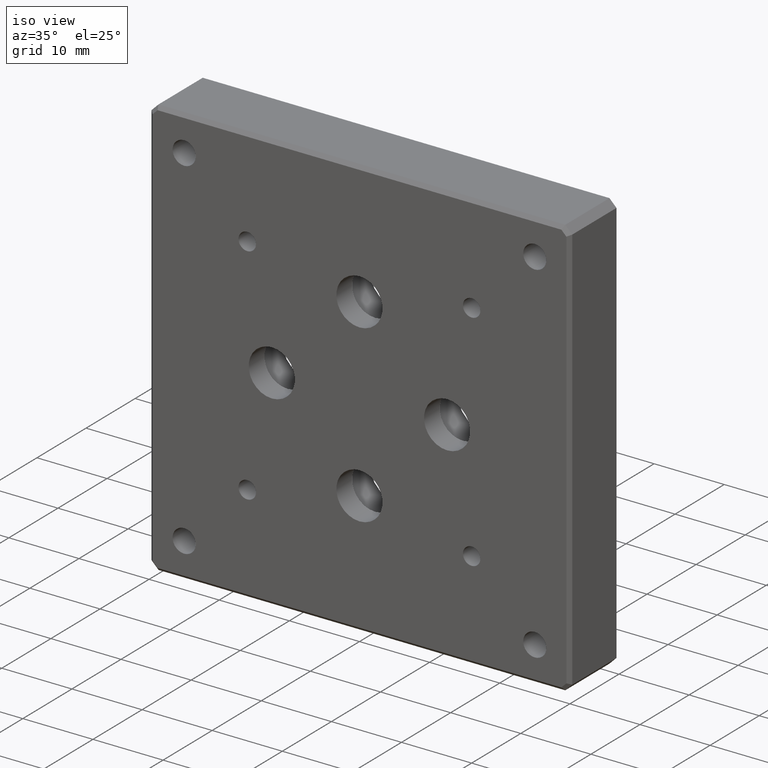
[diagram: clean part render]
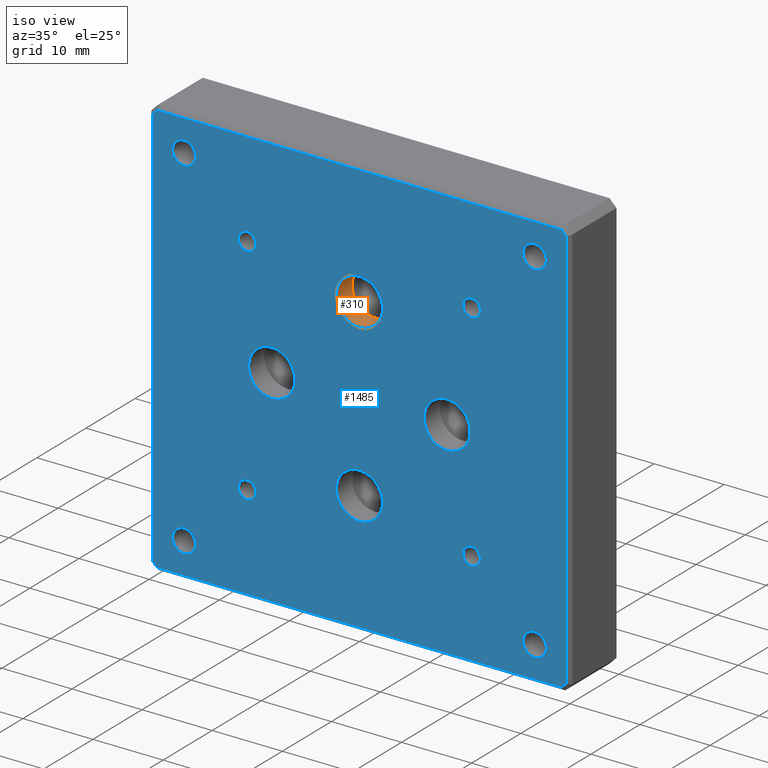
[diagram: same view with the hole feature highlighted: cylindrical wall and planar end face, labeled with their STEP entity ids]
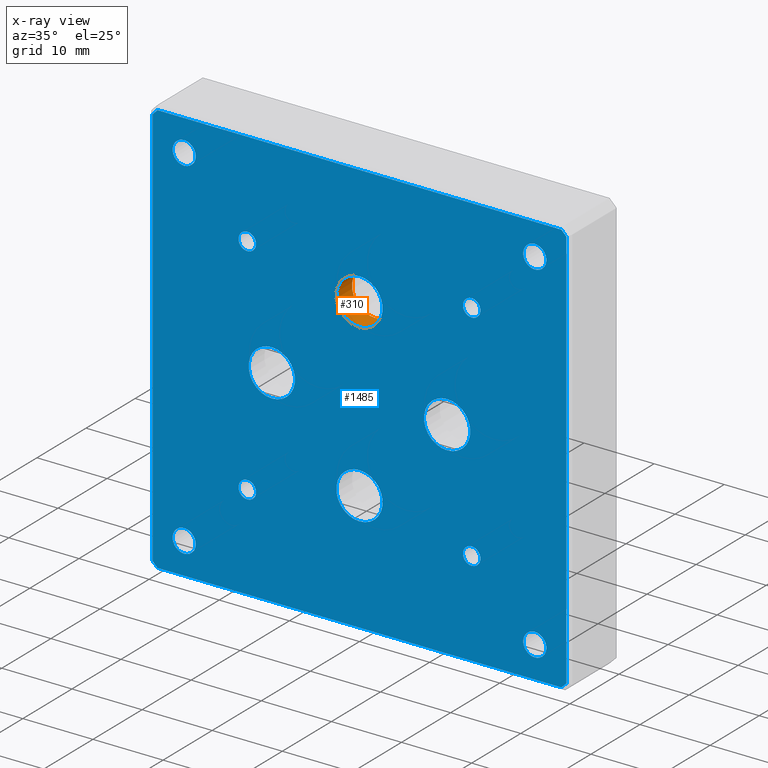
[diagram: x-ray of the same camera — body ghosted, the hole faces saturated]
A machine part, iso view. The highlighted faces form one hole feature of diameter 6.6 mm: the cylindrical wall (entity #310, orange) and its adjacent planar end face (entity #1485, blue) — they share a circular edge in the B-rep.
The next image is the same camera in x-ray (body ghosted, the hole faces saturated) — the bore reads through the body.
Wall:
#82 = EDGE_CURVE ( 'NONE', #689, #689, #297, .T. ) ;
#159 = DIRECTION ( 'NONE',  ( -0.000000000000000000, 1.000000000000000000, -0.000000000000000000 ) ) ;
#183 = DIRECTION ( 'NONE',  ( 0.000000000000000000, 0.000000000000000000, 1.000000000000000000 ) ) ;
#202 = EDGE_LOOP ( 'NONE', ( #696 ) ) ;
#215 = CARTESIAN_POINT ( 'NONE',  ( 6.938893903907228378E-15, 3.200000000000003286, 15.80000000000000071 ) ) ;
#294 = CARTESIAN_POINT ( 'NONE',  ( 6.938893903907228378E-15, 0.000000000000000000, 12.50000000000000355 ) ) ;
#297 = CIRCLE ( 'NONE', #1285, 3.299999999999997158 ) ;
#300 = DIRECTION ( 'NONE',  ( -0.000000000000000000, 1.000000000000000000, -0.000000000000000000 ) ) ;
#310 = ADVANCED_FACE ( 'NONE', ( #1202, #840 ), #1328, .F. ) ;
#312 = AXIS2_PLACEMENT_3D ( 'NONE', #294, #159, #665 ) ;
#528 = CARTESIAN_POINT ( 'NONE',  ( 6.938893903907228378E-15, 3.200000000000003286, 12.50000000000000355 ) ) ;
#581 = AXIS2_PLACEMENT_3D ( 'NONE', #1194, #1539, #1065 ) ;
#665 = DIRECTION ( 'NONE',  ( 0.000000000000000000, 0.000000000000000000, 1.000000000000000000 ) ) ;
#689 = VERTEX_POINT ( 'NONE', #215 ) ;
#696 = ORIENTED_EDGE ( 'NONE', *, *, #951, .F. ) ;
#840 = FACE_OUTER_BOUND ( 'NONE', #1396, .T. ) ;
#951 = EDGE_CURVE ( 'NONE', #1426, #1426, #1003, .T. ) ;
#1003 = CIRCLE ( 'NONE', #312, 3.299999999999997158 ) ;
#1065 = DIRECTION ( 'NONE',  ( 0.000000000000000000, 0.000000000000000000, 1.000000000000000000 ) ) ;
#1194 = CARTESIAN_POINT ( 'NONE',  ( 6.938893903907228378E-15, 10.00000000000000000, 12.50000000000000355 ) ) ;
#1202 = FACE_OUTER_BOUND ( 'NONE', #202, .T. ) ;
#1285 = AXIS2_PLACEMENT_3D ( 'NONE', #528, #300, #183 ) ;
#1315 = ORIENTED_EDGE ( 'NONE', *, *, #82, .T. ) ;
#1328 = CYLINDRICAL_SURFACE ( 'NONE', #581, 3.299999999999997158 ) ;
#1396 = EDGE_LOOP ( 'NONE', ( #1315 ) ) ;
#1426 = VERTEX_POINT ( 'NONE', #1442 ) ;
#1442 = CARTESIAN_POINT ( 'NONE',  ( 6.938893903907228378E-15, 0.000000000000000000, 15.80000000000000071 ) ) ;
#1539 = DIRECTION ( 'NONE',  ( -0.000000000000000000, 1.000000000000000000, -0.000000000000000000 ) ) ;
End face:
#14 = DIRECTION ( 'NONE',  ( 0.000000000000000000, 0.000000000000000000, 1.000000000000000000 ) ) ;
#27 = CARTESIAN_POINT ( 'NONE',  ( 29.64644660940670917, 0.000000000000000000, -28.64644660940672338 ) ) ;
#32 = PLANE ( 'NONE',  #760 ) ;
#34 = DIRECTION ( 'NONE',  ( 0.000000000000000000, 0.000000000000000000, 1.000000000000000000 ) ) ;
#35 = VERTEX_POINT ( 'NONE', #537 ) ;
#38 = CIRCLE ( 'NONE', #920, 1.249999999999997558 ) ;
#44 = AXIS2_PLACEMENT_3D ( 'NONE', #958, #247, #14 ) ;
#54 = DIRECTION ( 'NONE',  ( 0.000000000000000000, 0.000000000000000000, 1.000000000000000000 ) ) ;
#56 = CARTESIAN_POINT ( 'NONE',  ( 3.469446951953614189E-15, 0.000000000000000000, -9.199999999999999289 ) ) ;
#93 = CARTESIAN_POINT ( 'NONE',  ( 29.49999999999998934, 0.000000000000000000, -28.79289321881344321 ) ) ;
#98 = VERTEX_POINT ( 'NONE', #677 ) ;
#131 = LINE ( 'NONE', #826, #876 ) ;
#144 = ORIENTED_EDGE ( 'NONE', *, *, #951, .T. ) ;
#149 = DIRECTION ( 'NONE',  ( 0.7071067811865474617, 0.000000000000000000, 0.7071067811865474617 ) ) ;
#156 = ORIENTED_EDGE ( 'NONE', *, *, #366, .T. ) ;
#159 = DIRECTION ( 'NONE',  ( -0.000000000000000000, 1.000000000000000000, -0.000000000000000000 ) ) ;
#160 = EDGE_LOOP ( 'NONE', ( #1090 ) ) ;
#163 = FACE_BOUND ( 'NONE', #160, .T. ) ;
#170 = EDGE_CURVE ( 'NONE', #1080, #1359, #315, .T. ) ;
#211 = VERTEX_POINT ( 'NONE', #690 ) ;
#212 = DIRECTION ( 'NONE',  ( -0.000000000000000000, 1.000000000000000000, -0.000000000000000000 ) ) ;
#220 = CARTESIAN_POINT ( 'NONE',  ( -29.50000000000000711, 0.000000000000000000, 3.411622836087721539E-15 ) ) ;
#221 = AXIS2_PLACEMENT_3D ( 'NONE', #1039, #311, #817 ) ;
#222 = EDGE_LOOP ( 'NONE', ( #144 ) ) ;
#233 = VERTEX_POINT ( 'NONE', #1086 ) ;
#244 = LINE ( 'NONE', #1223, #1553 ) ;
#246 = CARTESIAN_POINT ( 'NONE',  ( 25.00000000000000355, 0.000000000000000000, 26.65000000000000568 ) ) ;
#247 = DIRECTION ( 'NONE',  ( -0.000000000000000000, 1.000000000000000000, -0.000000000000000000 ) ) ;
#264 = AXIS2_PLACEMENT_3D ( 'NONE', #771, #1369, #34 ) ;
#270 = CIRCLE ( 'NONE', #44, 1.649999999999998579 ) ;
#271 = FACE_BOUND ( 'NONE', #809, .T. ) ;
#273 = CARTESIAN_POINT ( 'NONE',  ( -16.00000000000000355, 0.000000000000000000, 15.99999999999999645 ) ) ;
#281 = DIRECTION ( 'NONE',  ( -0.000000000000000000, 1.000000000000000000, -0.000000000000000000 ) ) ;
#285 = FACE_OUTER_BOUND ( 'NONE', #999, .T. ) ;
#289 = DIRECTION ( 'NONE',  ( -0.000000000000000000, 1.000000000000000000, -0.000000000000000000 ) ) ;
#291 = AXIS2_PLACEMENT_3D ( 'NONE', #1380, #289, #54 ) ;
#294 = CARTESIAN_POINT ( 'NONE',  ( 6.938893903907228378E-15, 0.000000000000000000, 12.50000000000000355 ) ) ;
#301 = CARTESIAN_POINT ( 'NONE',  ( -16.00000000000000355, 0.000000000000000000, -16.00000000000000355 ) ) ;
#311 = DIRECTION ( 'NONE',  ( -0.000000000000000000, 1.000000000000000000, -0.000000000000000000 ) ) ;
#312 = AXIS2_PLACEMENT_3D ( 'NONE', #294, #159, #665 ) ;
#315 = LINE ( 'NONE', #1551, #1212 ) ;
#320 = ORIENTED_EDGE ( 'NONE', *, *, #893, .T. ) ;
#329 = EDGE_LOOP ( 'NONE', ( #735 ) ) ;
#330 = LINE ( 'NONE', #800, #793 ) ;
#345 = CARTESIAN_POINT ( 'NONE',  ( -24.99999999999999645, 0.000000000000000000, 26.65000000000000568 ) ) ;
#355 = DIRECTION ( 'NONE',  ( -1.000000000000000000, 0.000000000000000000, 0.000000000000000000 ) ) ;
#358 = ORIENTED_EDGE ( 'NONE', *, *, #984, .T. ) ;
#362 = VERTEX_POINT ( 'NONE', #379 ) ;
#363 = CARTESIAN_POINT ( 'NONE',  ( -29.64644660940671628, 0.000000000000000000, 28.64644660940673759 ) ) ;
#364 = VERTEX_POINT ( 'NONE', #93 ) ;
#366 = EDGE_CURVE ( 'NONE', #35, #98, #1425, .T. ) ;
#378 = CIRCLE ( 'NONE', #291, 1.649999999999998579 ) ;
#379 = CARTESIAN_POINT ( 'NONE',  ( -12.49999999999999467, 0.000000000000000000, 3.300000000000000711 ) ) ;
#388 = CARTESIAN_POINT ( 'NONE',  ( 0.000000000000000000, 0.000000000000000000, 0.000000000000000000 ) ) ;
#399 = CIRCLE ( 'NONE', #1384, 3.299999999999997158 ) ;
#407 = DIRECTION ( 'NONE',  ( 0.000000000000000000, 0.000000000000000000, 1.000000000000000000 ) ) ;
#429 = DIRECTION ( 'NONE',  ( -0.000000000000000000, 1.000000000000000000, -0.000000000000000000 ) ) ;
#453 = ORIENTED_EDGE ( 'NONE', *, *, #622, .T. ) ;
#469 = CARTESIAN_POINT ( 'NONE',  ( -25.00000000000000355, 0.000000000000000000, -23.34999999999999432 ) ) ;
#472 = ORIENTED_EDGE ( 'NONE', *, *, #572, .T. ) ;
#499 = CARTESIAN_POINT ( 'NONE',  ( 28.79289321881342900, 0.000000000000000000, -29.50000000000000355 ) ) ;
#505 = FACE_BOUND ( 'NONE', #1211, .T. ) ;
#509 = CARTESIAN_POINT ( 'NONE',  ( -29.50000000000000355, 0.000000000000000000, 28.79289321881345032 ) ) ;
#536 = EDGE_CURVE ( 'NONE', #670, #670, #399, .T. ) ;
#537 = CARTESIAN_POINT ( 'NONE',  ( 28.79289321881344321, 0.000000000000000000, 29.50000000000000711 ) ) ;
#539 = ORIENTED_EDGE ( 'NONE', *, *, #1349, .T. ) ;
#541 = VERTEX_POINT ( 'NONE', #1399 ) ;
#550 = EDGE_CURVE ( 'NONE', #541, #541, #378, .T. ) ;
#559 = LINE ( 'NONE', #220, #825 ) ;
#566 = DIRECTION ( 'NONE',  ( -1.156482317317871478E-16, 0.000000000000000000, -1.000000000000000000 ) ) ;
#570 = CARTESIAN_POINT ( 'NONE',  ( -28.79289321881344321, 0.000000000000000000, -29.50000000000000355 ) ) ;
#572 = EDGE_CURVE ( 'NONE', #211, #35, #330, .T. ) ;
#578 = CARTESIAN_POINT ( 'NONE',  ( -16.00000000000000355, 0.000000000000000000, 17.24999999999999289 ) ) ;
#585 = EDGE_LOOP ( 'NONE', ( #453 ) ) ;
#603 = AXIS2_PLACEMENT_3D ( 'NONE', #301, #1402, #1286 ) ;
#615 = EDGE_CURVE ( 'NONE', #909, #909, #1032, .T. ) ;
#622 = EDGE_CURVE ( 'NONE', #362, #362, #1309, .T. ) ;
#633 = EDGE_LOOP ( 'NONE', ( #703 ) ) ;
#639 = DIRECTION ( 'NONE',  ( 0.000000000000000000, 0.000000000000000000, 1.000000000000000000 ) ) ;
#645 = FACE_BOUND ( 'NONE', #1431, .T. ) ;
#648 = VECTOR ( 'NONE', #149, 1000.000000000000114 ) ;
#665 = DIRECTION ( 'NONE',  ( 0.000000000000000000, 0.000000000000000000, 1.000000000000000000 ) ) ;
#669 = EDGE_CURVE ( 'NONE', #837, #680, #559, .T. ) ;
#670 = VERTEX_POINT ( 'NONE', #56 ) ;
#677 = CARTESIAN_POINT ( 'NONE',  ( -28.79289321881344321, 0.000000000000000000, 29.50000000000000711 ) ) ;
#680 = VERTEX_POINT ( 'NONE', #704 ) ;
#690 = CARTESIAN_POINT ( 'NONE',  ( 29.49999999999999645, 0.000000000000000000, 28.79289321881346453 ) ) ;
#701 = DIRECTION ( 'NONE',  ( 1.000000000000000000, 0.000000000000000000, 0.000000000000000000 ) ) ;
#703 = ORIENTED_EDGE ( 'NONE', *, *, #1201, .T. ) ;
#704 = CARTESIAN_POINT ( 'NONE',  ( -29.50000000000000711, 0.000000000000000000, -28.79289321881343611 ) ) ;
#707 = CARTESIAN_POINT ( 'NONE',  ( 15.99999999999999645, 0.000000000000000000, -14.75000000000000355 ) ) ;
#735 = ORIENTED_EDGE ( 'NONE', *, *, #550, .T. ) ;
#736 = DIRECTION ( 'NONE',  ( 0.7071067811865474617, 0.000000000000000000, -0.7071067811865474617 ) ) ;
#751 = FACE_BOUND ( 'NONE', #1429, .T. ) ;
#760 = AXIS2_PLACEMENT_3D ( 'NONE', #388, #1004, #1227 ) ;
#769 = FACE_BOUND ( 'NONE', #633, .T. ) ;
#771 = CARTESIAN_POINT ( 'NONE',  ( -25.00000000000000355, 0.000000000000000000, -24.99999999999999289 ) ) ;
#777 = DIRECTION ( 'NONE',  ( 0.000000000000000000, 0.000000000000000000, 1.000000000000000000 ) ) ;
#782 = EDGE_CURVE ( 'NONE', #680, #1080, #244, .T. ) ;
#793 = VECTOR ( 'NONE', #1280, 1000.000000000000114 ) ;
#800 = CARTESIAN_POINT ( 'NONE',  ( 28.64644660940672338, 0.000000000000000000, 29.64644660940673049 ) ) ;
#809 = EDGE_LOOP ( 'NONE', ( #1353 ) ) ;
#817 = DIRECTION ( 'NONE',  ( 0.000000000000000000, 0.000000000000000000, 1.000000000000000000 ) ) ;
#819 = CIRCLE ( 'NONE', #264, 1.649999999999998579 ) ;
#825 = VECTOR ( 'NONE', #566, 1000.000000000000000 ) ;
#826 = CARTESIAN_POINT ( 'NONE',  ( 29.49999999999999289, 0.000000000000000000, -3.411622836087719962E-15 ) ) ;
#837 = VERTEX_POINT ( 'NONE', #509 ) ;
#850 = DIRECTION ( 'NONE',  ( 0.000000000000000000, 0.000000000000000000, 1.000000000000000000 ) ) ;
#860 = ORIENTED_EDGE ( 'NONE', *, *, #917, .T. ) ;
#861 = FACE_BOUND ( 'NONE', #913, .T. ) ;
#876 = VECTOR ( 'NONE', #1450, 1000.000000000000000 ) ;
#891 = ORIENTED_EDGE ( 'NONE', *, *, #1301, .T. ) ;
#893 = EDGE_CURVE ( 'NONE', #1337, #1337, #819, .T. ) ;
#902 = EDGE_CURVE ( 'NONE', #1359, #364, #1498, .T. ) ;
#909 = VERTEX_POINT ( 'NONE', #1393 ) ;
#910 = VECTOR ( 'NONE', #1196, 1000.000000000000114 ) ;
#913 = EDGE_LOOP ( 'NONE', ( #1016 ) ) ;
#917 = EDGE_CURVE ( 'NONE', #1344, #1344, #1303, .T. ) ;
#920 = AXIS2_PLACEMENT_3D ( 'NONE', #273, #429, #639 ) ;
#951 = EDGE_CURVE ( 'NONE', #1426, #1426, #1003, .T. ) ;
#958 = CARTESIAN_POINT ( 'NONE',  ( 25.00000000000000355, 0.000000000000000000, 25.00000000000000711 ) ) ;
#965 = VECTOR ( 'NONE', #355, 1000.000000000000000 ) ;
#966 = CARTESIAN_POINT ( 'NONE',  ( 12.50000000000000533, 0.000000000000000000, 3.299999999999997158 ) ) ;
#981 = EDGE_CURVE ( 'NONE', #1076, #1076, #1249, .T. ) ;
#984 = EDGE_CURVE ( 'NONE', #1455, #1455, #38, .T. ) ;
#998 = DIRECTION ( 'NONE',  ( 0.000000000000000000, 0.000000000000000000, 1.000000000000000000 ) ) ;
#999 = EDGE_LOOP ( 'NONE', ( #1287, #891, #472, #156, #539, #1110, #1355, #1183 ) ) ;
#1003 = CIRCLE ( 'NONE', #312, 3.299999999999997158 ) ;
#1004 = DIRECTION ( 'NONE',  ( 0.000000000000000000, 1.000000000000000000, 0.000000000000000000 ) ) ;
#1012 = FACE_BOUND ( 'NONE', #585, .T. ) ;
#1016 = ORIENTED_EDGE ( 'NONE', *, *, #981, .T. ) ;
#1021 = CARTESIAN_POINT ( 'NONE',  ( 12.50000000000000533, 0.000000000000000000, 1.734723475976807094E-15 ) ) ;
#1027 = AXIS2_PLACEMENT_3D ( 'NONE', #1504, #281, #998 ) ;
#1032 = CIRCLE ( 'NONE', #1360, 1.249999999999997558 ) ;
#1039 = CARTESIAN_POINT ( 'NONE',  ( -12.49999999999999467, 0.000000000000000000, 3.469446951953614189E-15 ) ) ;
#1052 = ORIENTED_EDGE ( 'NONE', *, *, #615, .T. ) ;
#1076 = VERTEX_POINT ( 'NONE', #707 ) ;
#1078 = DIRECTION ( 'NONE',  ( -0.000000000000000000, 1.000000000000000000, -0.000000000000000000 ) ) ;
#1080 = VERTEX_POINT ( 'NONE', #570 ) ;
#1086 = CARTESIAN_POINT ( 'NONE',  ( -16.00000000000000355, 0.000000000000000000, -14.75000000000000533 ) ) ;
#1087 = CARTESIAN_POINT ( 'NONE',  ( -24.99999999999999645, 0.000000000000000000, 25.00000000000000711 ) ) ;
#1088 = ORIENTED_EDGE ( 'NONE', *, *, #1226, .T. ) ;
#1090 = ORIENTED_EDGE ( 'NONE', *, *, #1274, .T. ) ;
#1110 = ORIENTED_EDGE ( 'NONE', *, *, #669, .T. ) ;
#1123 = EDGE_LOOP ( 'NONE', ( #320 ) ) ;
#1165 = EDGE_LOOP ( 'NONE', ( #1052 ) ) ;
#1181 = DIRECTION ( 'NONE',  ( 0.000000000000000000, 0.000000000000000000, 1.000000000000000000 ) ) ;
#1183 = ORIENTED_EDGE ( 'NONE', *, *, #170, .T. ) ;
#1196 = DIRECTION ( 'NONE',  ( -0.7071067811865474617, 0.000000000000000000, -0.7071067811865474617 ) ) ;
#1201 = EDGE_CURVE ( 'NONE', #233, #233, #1458, .T. ) ;
#1208 = CIRCLE ( 'NONE', #1561, 1.649999999999998579 ) ;
#1211 = EDGE_LOOP ( 'NONE', ( #1088 ) ) ;
#1212 = VECTOR ( 'NONE', #701, 1000.000000000000000 ) ;
#1214 = VERTEX_POINT ( 'NONE', #345 ) ;
#1223 = CARTESIAN_POINT ( 'NONE',  ( -28.64644660940673049, 0.000000000000000000, -29.64644660940671628 ) ) ;
#1226 = EDGE_CURVE ( 'NONE', #1214, #1214, #1208, .T. ) ;
#1227 = DIRECTION ( 'NONE',  ( 0.000000000000000000, -0.000000000000000000, 1.000000000000000000 ) ) ;
#1233 = CARTESIAN_POINT ( 'NONE',  ( 0.000000000000000000, 0.000000000000000000, 29.50000000000000711 ) ) ;
#1249 = CIRCLE ( 'NONE', #1027, 1.249999999999997558 ) ;
#1251 = FACE_BOUND ( 'NONE', #1123, .T. ) ;
#1273 = CARTESIAN_POINT ( 'NONE',  ( 3.469446951953614189E-15, 0.000000000000000000, -12.49999999999999645 ) ) ;
#1274 = EDGE_CURVE ( 'NONE', #1560, #1560, #270, .T. ) ;
#1280 = DIRECTION ( 'NONE',  ( -0.7071067811865500152, 0.000000000000000000, 0.7071067811865451302 ) ) ;
#1286 = DIRECTION ( 'NONE',  ( 0.000000000000000000, 0.000000000000000000, 1.000000000000000000 ) ) ;
#1287 = ORIENTED_EDGE ( 'NONE', *, *, #902, .T. ) ;
#1295 = CARTESIAN_POINT ( 'NONE',  ( 16.00000000000000355, 0.000000000000000000, 15.99999999999999645 ) ) ;
#1301 = EDGE_CURVE ( 'NONE', #364, #211, #131, .T. ) ;
#1303 = CIRCLE ( 'NONE', #1522, 3.299999999999995826 ) ;
#1309 = CIRCLE ( 'NONE', #221, 3.299999999999997158 ) ;
#1337 = VERTEX_POINT ( 'NONE', #469 ) ;
#1344 = VERTEX_POINT ( 'NONE', #966 ) ;
#1345 = LINE ( 'NONE', #363, #910 ) ;
#1349 = EDGE_CURVE ( 'NONE', #98, #837, #1345, .T. ) ;
#1353 = ORIENTED_EDGE ( 'NONE', *, *, #536, .T. ) ;
#1355 = ORIENTED_EDGE ( 'NONE', *, *, #782, .T. ) ;
#1359 = VERTEX_POINT ( 'NONE', #499 ) ;
#1360 = AXIS2_PLACEMENT_3D ( 'NONE', #1295, #212, #1181 ) ;
#1367 = FACE_BOUND ( 'NONE', #329, .T. ) ;
#1369 = DIRECTION ( 'NONE',  ( -0.000000000000000000, 1.000000000000000000, -0.000000000000000000 ) ) ;
#1380 = CARTESIAN_POINT ( 'NONE',  ( 24.99999999999999645, 0.000000000000000000, -24.99999999999998934 ) ) ;
#1383 = DIRECTION ( 'NONE',  ( -0.000000000000000000, 1.000000000000000000, -0.000000000000000000 ) ) ;
#1384 = AXIS2_PLACEMENT_3D ( 'NONE', #1273, #1482, #407 ) ;
#1393 = CARTESIAN_POINT ( 'NONE',  ( 16.00000000000000355, 0.000000000000000000, 17.24999999999999289 ) ) ;
#1399 = CARTESIAN_POINT ( 'NONE',  ( 24.99999999999999645, 0.000000000000000000, -23.34999999999999076 ) ) ;
#1402 = DIRECTION ( 'NONE',  ( -0.000000000000000000, 1.000000000000000000, -0.000000000000000000 ) ) ;
#1425 = LINE ( 'NONE', #1233, #965 ) ;
#1426 = VERTEX_POINT ( 'NONE', #1442 ) ;
#1429 = EDGE_LOOP ( 'NONE', ( #860 ) ) ;
#1431 = EDGE_LOOP ( 'NONE', ( #358 ) ) ;
#1442 = CARTESIAN_POINT ( 'NONE',  ( 6.938893903907228378E-15, 0.000000000000000000, 15.80000000000000071 ) ) ;
#1450 = DIRECTION ( 'NONE',  ( 1.156482317317871478E-16, 0.000000000000000000, 1.000000000000000000 ) ) ;
#1455 = VERTEX_POINT ( 'NONE', #578 ) ;
#1458 = CIRCLE ( 'NONE', #603, 1.249999999999997558 ) ;
#1482 = DIRECTION ( 'NONE',  ( -0.000000000000000000, 1.000000000000000000, -0.000000000000000000 ) ) ;
#1485 = ADVANCED_FACE ( 'NONE', ( #1251, #1367, #163, #505, #769, #861, #1495, #645, #271, #1012, #751, #1488, #285 ), #32, .F. ) ;
#1488 = FACE_BOUND ( 'NONE', #222, .T. ) ;
#1495 = FACE_BOUND ( 'NONE', #1165, .T. ) ;
#1498 = LINE ( 'NONE', #27, #648 ) ;
#1504 = CARTESIAN_POINT ( 'NONE',  ( 15.99999999999999645, 0.000000000000000000, -16.00000000000000000 ) ) ;
#1522 = AXIS2_PLACEMENT_3D ( 'NONE', #1021, #1383, #777 ) ;
#1551 = CARTESIAN_POINT ( 'NONE',  ( 0.000000000000000000, 0.000000000000000000, -29.50000000000000355 ) ) ;
#1553 = VECTOR ( 'NONE', #736, 1000.000000000000114 ) ;
#1560 = VERTEX_POINT ( 'NONE', #246 ) ;
#1561 = AXIS2_PLACEMENT_3D ( 'NONE', #1087, #1078, #850 ) ;